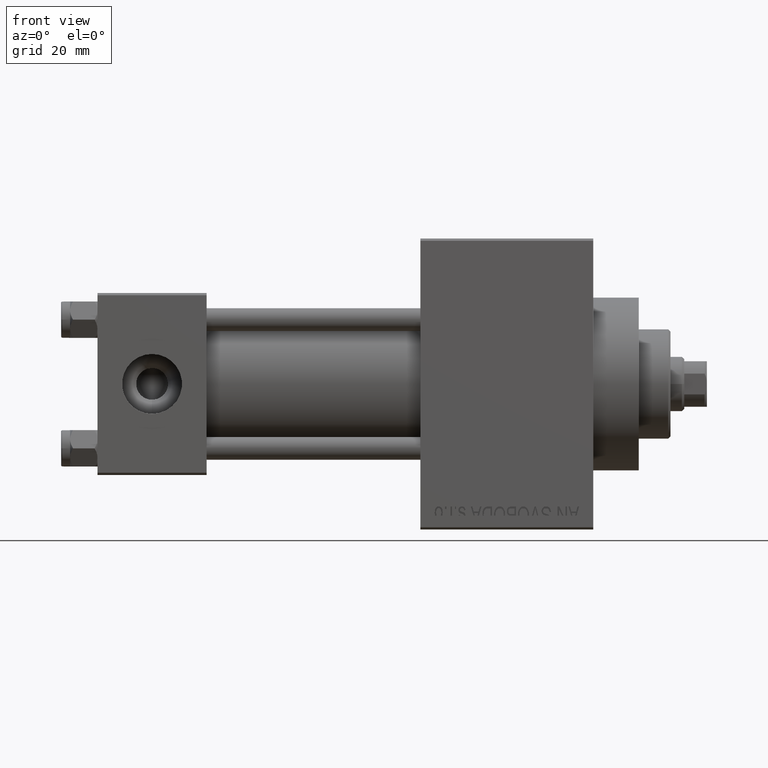
[diagram: clean part render]
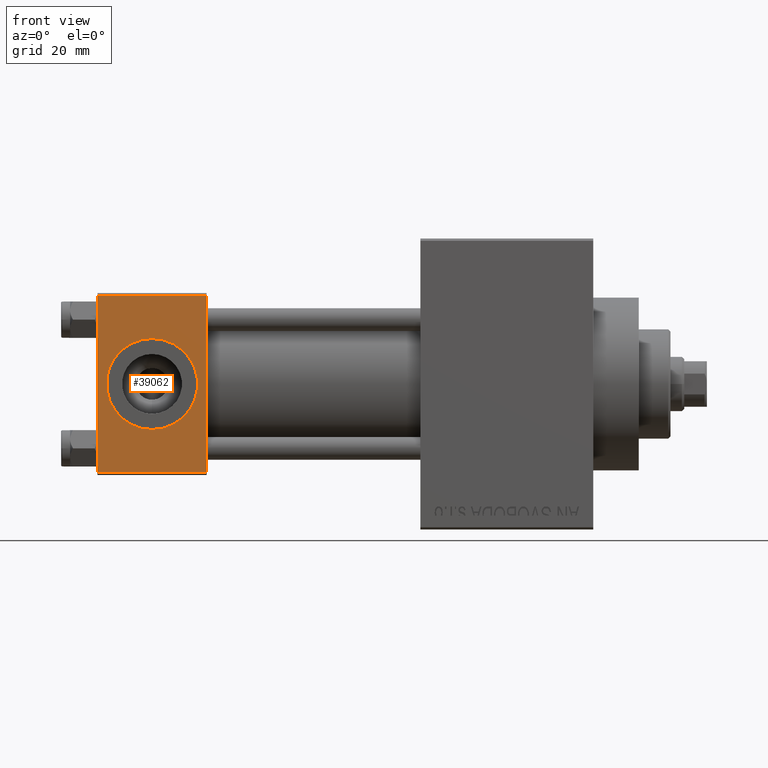
[diagram: same view with one face highlighted and labeled with its STEP entity id]
A machine part, front view. The second image highlights one B-rep face of the part: STEP entity #39062.
In plain terms, the highlighted planar face has unit normal (0, 1, 0).
Its self-contained STEP definition (entity closure, byte-faithful):
#620 = CARTESIAN_POINT ( 'NONE',  ( 12.00000000000000178, -20.00000000000000355, 9.999999999999994671 ) ) ;
#2051 = CARTESIAN_POINT ( 'NONE',  ( 24.00000000000000000, -20.00000000000000000, -19.49999999999999645 ) ) ;
#4007 = LINE ( 'NONE', #40883, #19936 ) ;
#4398 = CARTESIAN_POINT ( 'NONE',  ( 12.00000000000000000, -20.00000000000000355, -1.734723475976807883E-15 ) ) ;
#6378 = VERTEX_POINT ( 'NONE', #10207 ) ;
#7268 = DIRECTION ( 'NONE',  ( 0.000000000000000000, -1.000000000000000000, -8.673617379884036705E-17 ) ) ;
#7535 = EDGE_CURVE ( 'NONE', #14063, #30269, #26513, .T. ) ;
#8034 = PLANE ( 'NONE',  #45321 ) ;
#8062 = DIRECTION ( 'NONE',  ( 0.000000000000000000, 8.673617379884036705E-17, -1.000000000000000000 ) ) ;
#8219 = ORIENTED_EDGE ( 'NONE', *, *, #25151, .T. ) ;
#9195 = AXIS2_PLACEMENT_3D ( 'NONE', #4398, #41043, #33666 ) ;
#10207 = CARTESIAN_POINT ( 'NONE',  ( 0.000000000000000000, -20.00000000000000355, 19.49999999999998224 ) ) ;
#10832 = LINE ( 'NONE', #47008, #11734 ) ;
#11734 = VECTOR ( 'NONE', #17736, 1000.000000000000000 ) ;
#11952 = ORIENTED_EDGE ( 'NONE', *, *, #17648, .T. ) ;
#12839 = VERTEX_POINT ( 'NONE', #43399 ) ;
#13350 = CARTESIAN_POINT ( 'NONE',  ( 12.00000000000000000, -20.00000000000000355, -9.999999999999998224 ) ) ;
#14063 = VERTEX_POINT ( 'NONE', #13350 ) ;
#14937 = DIRECTION ( 'NONE',  ( -0.000000000000000000, 1.000000000000000000, 8.673617379884036705E-17 ) ) ;
#17648 = EDGE_CURVE ( 'NONE', #12839, #6378, #10832, .T. ) ;
#17736 = DIRECTION ( 'NONE',  ( -1.000000000000000000, 0.000000000000000000, 0.000000000000000000 ) ) ;
#18241 = ORIENTED_EDGE ( 'NONE', *, *, #26781, .F. ) ;
#18520 = DIRECTION ( 'NONE',  ( 0.000000000000000000, 8.673617379884036705E-17, -1.000000000000000000 ) ) ;
#18733 = FACE_BOUND ( 'NONE', #23920, .T. ) ;
#19936 = VECTOR ( 'NONE', #18520, 1000.000000000000000 ) ;
#21050 = LINE ( 'NONE', #46767, #43653 ) ;
#21772 = CARTESIAN_POINT ( 'NONE',  ( 12.00000000000000000, -20.00000000000000355, -1.734723475976807883E-15 ) ) ;
#22181 = EDGE_CURVE ( 'NONE', #30269, #14063, #43381, .T. ) ;
#23920 = EDGE_LOOP ( 'NONE', ( #38212, #35021 ) ) ;
#24857 = DIRECTION ( 'NONE',  ( 1.000000000000000000, 0.000000000000000000, 0.000000000000000000 ) ) ;
#25042 = VERTEX_POINT ( 'NONE', #42594 ) ;
#25151 = EDGE_CURVE ( 'NONE', #6378, #25042, #4007, .T. ) ;
#26300 = ORIENTED_EDGE ( 'NONE', *, *, #33860, .T. ) ;
#26513 = CIRCLE ( 'NONE', #32602, 9.999999999999996447 ) ;
#26781 = EDGE_CURVE ( 'NONE', #12839, #30318, #37344, .T. ) ;
#27006 = EDGE_LOOP ( 'NONE', ( #8219, #26300, #18241, #11952 ) ) ;
#29482 = CARTESIAN_POINT ( 'NONE',  ( 24.00000000000000000, -20.00000000000000355, 19.99999999999998934 ) ) ;
#30269 = VERTEX_POINT ( 'NONE', #620 ) ;
#30318 = VERTEX_POINT ( 'NONE', #2051 ) ;
#32602 = AXIS2_PLACEMENT_3D ( 'NONE', #21772, #7268, #36300 ) ;
#33257 = CARTESIAN_POINT ( 'NONE',  ( 24.00000000000000000, -20.00000000000000355, 19.99999999999998934 ) ) ;
#33666 = DIRECTION ( 'NONE',  ( 0.000000000000000000, 0.000000000000000000, -1.000000000000000000 ) ) ;
#33860 = EDGE_CURVE ( 'NONE', #25042, #30318, #21050, .T. ) ;
#35021 = ORIENTED_EDGE ( 'NONE', *, *, #22181, .F. ) ;
#36300 = DIRECTION ( 'NONE',  ( 0.000000000000000000, 0.000000000000000000, -1.000000000000000000 ) ) ;
#37344 = LINE ( 'NONE', #29482, #37456 ) ;
#37456 = VECTOR ( 'NONE', #8062, 1000.000000000000000 ) ;
#38212 = ORIENTED_EDGE ( 'NONE', *, *, #7535, .F. ) ;
#39062 = ADVANCED_FACE ( 'NONE', ( #18733, #40399 ), #8034, .F. ) ;
#40399 = FACE_OUTER_BOUND ( 'NONE', #27006, .T. ) ;
#40883 = CARTESIAN_POINT ( 'NONE',  ( 0.000000000000000000, -20.00000000000000355, 19.99999999999998934 ) ) ;
#41043 = DIRECTION ( 'NONE',  ( 0.000000000000000000, -1.000000000000000000, -8.673617379884036705E-17 ) ) ;
#42594 = CARTESIAN_POINT ( 'NONE',  ( 0.000000000000000000, -20.00000000000000000, -19.49999999999999645 ) ) ;
#43381 = CIRCLE ( 'NONE', #9195, 9.999999999999996447 ) ;
#43399 = CARTESIAN_POINT ( 'NONE',  ( 24.00000000000000000, -20.00000000000000355, 19.49999999999998224 ) ) ;
#43653 = VECTOR ( 'NONE', #24857, 1000.000000000000000 ) ;
#44446 = DIRECTION ( 'NONE',  ( 0.000000000000000000, -8.673617379884036705E-17, 1.000000000000000000 ) ) ;
#45321 = AXIS2_PLACEMENT_3D ( 'NONE', #33257, #14937, #44446 ) ;
#46767 = CARTESIAN_POINT ( 'NONE',  ( 24.00000000000000000, -20.00000000000000000, -19.49999999999999645 ) ) ;
#47008 = CARTESIAN_POINT ( 'NONE',  ( 24.00000000000000000, -20.00000000000000355, 19.49999999999998224 ) ) ;